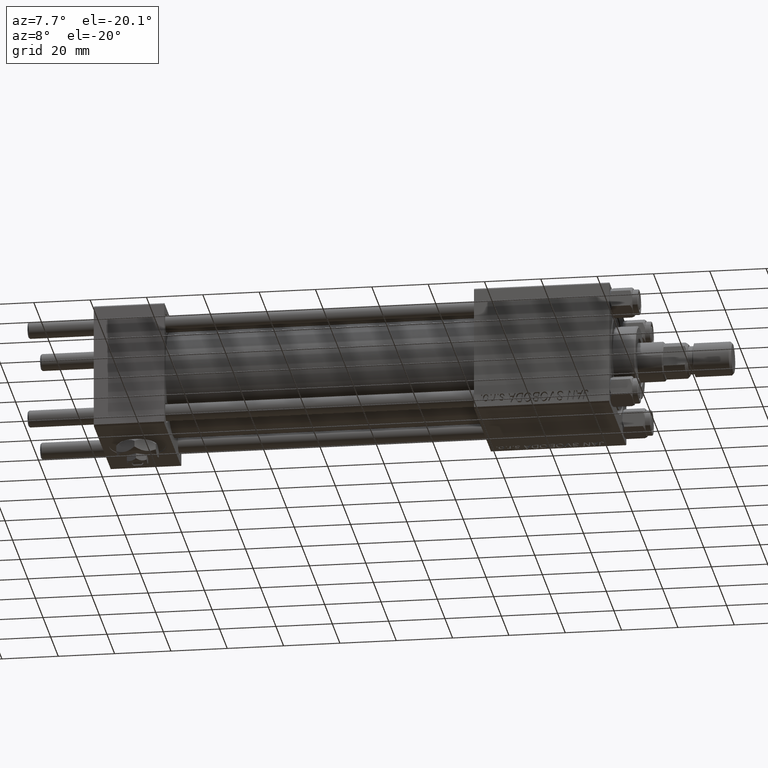
[diagram: clean part render]
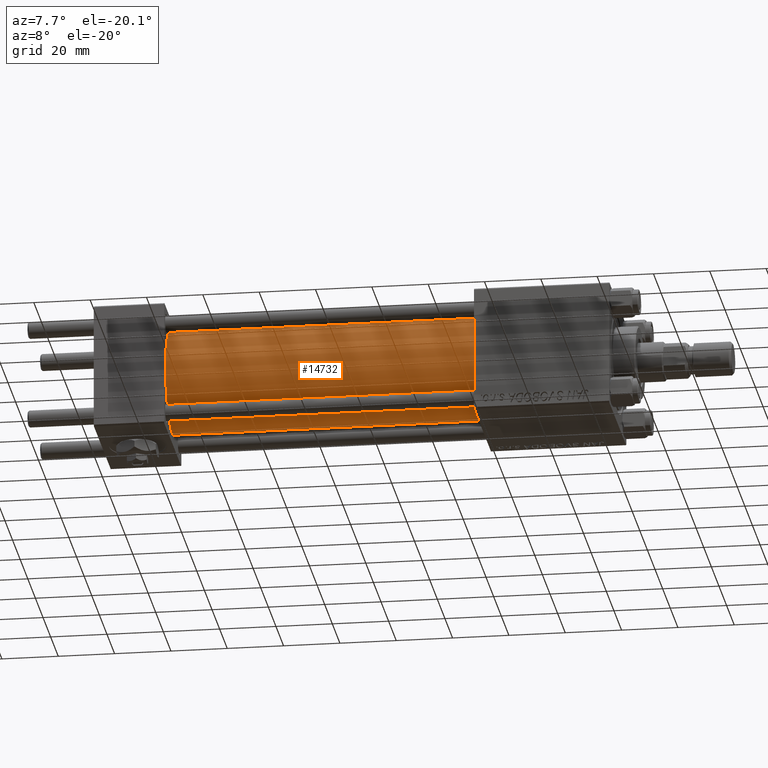
[diagram: same view with one face highlighted and labeled with its STEP entity id]
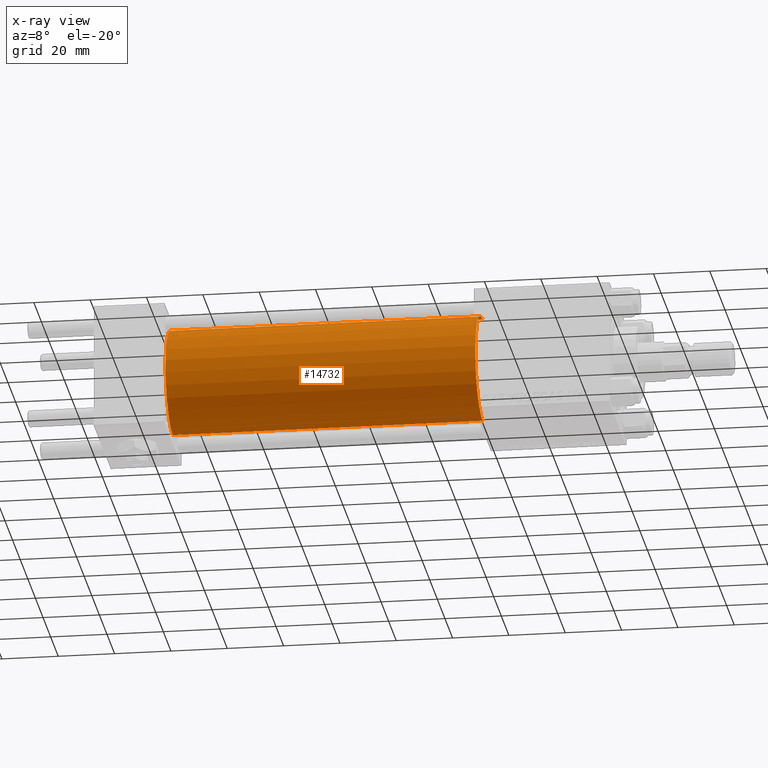
[diagram: x-ray of the same camera — body ghosted, the highlighted face saturated]
A machine part, auxiliary view. The second image highlights one B-rep face of the part: STEP entity #14732.
The next image is the same camera in x-ray: the body ghosted, the highlighted face saturated — about 0% of this face is hidden behind the body in this view.
In plain terms, the highlighted cylindrical surface (partial cylindrical patch) has radius 19 mm, axis along (-1, -0, -0).
Its self-contained STEP definition (entity closure, byte-faithful):
#462 = VERTEX_POINT ( 'NONE', #18096 ) ;
#850 = ORIENTED_EDGE ( 'NONE', *, *, #18471, .T. ) ;
#2546 = EDGE_LOOP ( 'NONE', ( #21252, #47465, #850, #19700 ) ) ;
#2957 = DIRECTION ( 'NONE',  ( 0.000000000000000000, 0.000000000000000000, 1.000000000000000000 ) ) ;
#5089 = AXIS2_PLACEMENT_3D ( 'NONE', #43619, #35457, #48341 ) ;
#5553 = LINE ( 'NONE', #41604, #29949 ) ;
#6053 = VERTEX_POINT ( 'NONE', #45439 ) ;
#6829 = VERTEX_POINT ( 'NONE', #21242 ) ;
#7701 = CARTESIAN_POINT ( 'NONE',  ( 135.0000000000000000, 0.000000000000000000, 0.000000000000000000 ) ) ;
#8820 = CARTESIAN_POINT ( 'NONE',  ( 135.0000000000000000, 0.000000000000000000, 19.00000000000000000 ) ) ;
#10563 = DIRECTION ( 'NONE',  ( -1.000000000000000000, -0.000000000000000000, -0.000000000000000000 ) ) ;
#11928 = DIRECTION ( 'NONE',  ( -1.000000000000000000, -0.000000000000000000, -0.000000000000000000 ) ) ;
#12514 = VECTOR ( 'NONE', #44652, 1000.000000000000000 ) ;
#14732 = ADVANCED_FACE ( 'NONE', ( #18519 ), #34569, .T. ) ;
#16243 = DIRECTION ( 'NONE',  ( 0.000000000000000000, 0.000000000000000000, -1.000000000000000000 ) ) ;
#18096 = CARTESIAN_POINT ( 'NONE',  ( 24.99999999999999289, 0.000000000000000000, 19.00000000000000000 ) ) ;
#18471 = EDGE_CURVE ( 'NONE', #30639, #462, #5553, .T. ) ;
#18519 = FACE_OUTER_BOUND ( 'NONE', #2546, .T. ) ;
#19700 = ORIENTED_EDGE ( 'NONE', *, *, #25279, .T. ) ;
#21242 = CARTESIAN_POINT ( 'NONE',  ( 135.0000000000000000, 2.326828918379970970E-15, -19.00000000000000000 ) ) ;
#21252 = ORIENTED_EDGE ( 'NONE', *, *, #21367, .F. ) ;
#21367 = EDGE_CURVE ( 'NONE', #6829, #6053, #40944, .T. ) ;
#22159 = AXIS2_PLACEMENT_3D ( 'NONE', #7701, #11928, #2957 ) ;
#25279 = EDGE_CURVE ( 'NONE', #462, #6053, #42074, .T. ) ;
#25968 = CIRCLE ( 'NONE', #41105, 19.00000000000000000 ) ;
#28078 = DIRECTION ( 'NONE',  ( 1.000000000000000000, 0.000000000000000000, 0.000000000000000000 ) ) ;
#29949 = VECTOR ( 'NONE', #10563, 1000.000000000000000 ) ;
#30639 = VERTEX_POINT ( 'NONE', #8820 ) ;
#31994 = EDGE_CURVE ( 'NONE', #30639, #6829, #25968, .T. ) ;
#34569 = CYLINDRICAL_SURFACE ( 'NONE', #22159, 19.00000000000000000 ) ;
#35457 = DIRECTION ( 'NONE',  ( 1.000000000000000000, -0.000000000000000000, 0.000000000000000000 ) ) ;
#35965 = CARTESIAN_POINT ( 'NONE',  ( 135.0000000000000000, 0.000000000000000000, 0.000000000000000000 ) ) ;
#36487 = CARTESIAN_POINT ( 'NONE',  ( 135.0000000000000000, 2.326828918379970970E-15, -19.00000000000000000 ) ) ;
#40944 = LINE ( 'NONE', #36487, #12514 ) ;
#41105 = AXIS2_PLACEMENT_3D ( 'NONE', #35965, #28078, #16243 ) ;
#41604 = CARTESIAN_POINT ( 'NONE',  ( 135.0000000000000000, 0.000000000000000000, 19.00000000000000000 ) ) ;
#42074 = CIRCLE ( 'NONE', #5089, 19.00000000000000000 ) ;
#43619 = CARTESIAN_POINT ( 'NONE',  ( 24.99999999999999289, 0.000000000000000000, 0.000000000000000000 ) ) ;
#44652 = DIRECTION ( 'NONE',  ( -1.000000000000000000, -0.000000000000000000, -0.000000000000000000 ) ) ;
#45439 = CARTESIAN_POINT ( 'NONE',  ( 24.99999999999999289, 2.326828918379970970E-15, -19.00000000000000000 ) ) ;
#47465 = ORIENTED_EDGE ( 'NONE', *, *, #31994, .F. ) ;
#48341 = DIRECTION ( 'NONE',  ( 0.000000000000000000, 0.000000000000000000, 1.000000000000000000 ) ) ;